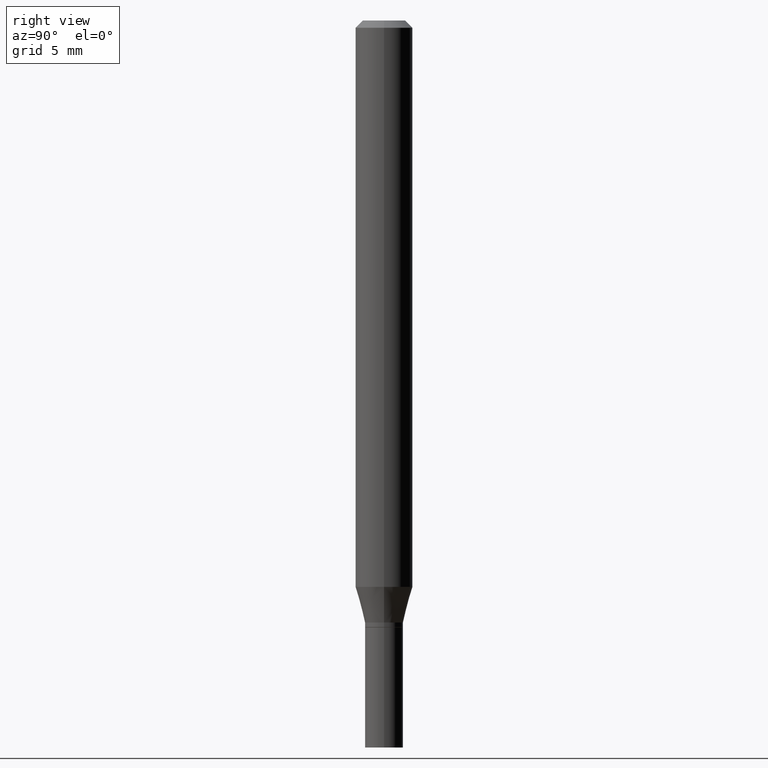
[diagram: clean part render]
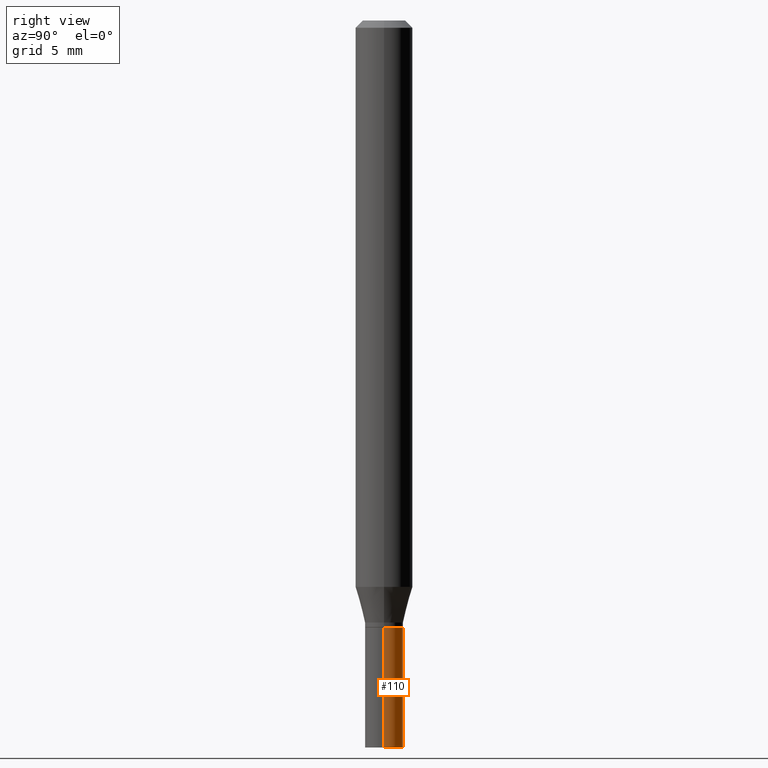
[diagram: same view with one face highlighted and labeled with its STEP entity id]
A machine part, right view. The second image highlights one B-rep face of the part: STEP entity #110.
In plain terms, the highlighted cylindrical surface (edge-blend (fillet) strip) has radius 0.9995 mm, axis along (-0, 0, 1).
Its self-contained STEP definition (entity closure, byte-faithful):
#11 = VERTEX_POINT ( 'NONE', #271 ) ;
#14 = VECTOR ( 'NONE', #391, 39.37007874015748143 ) ;
#22 = CARTESIAN_POINT ( 'NONE',  ( -0.03935000000000000303, 2.795985665215994447E-16, -1.935600958015305291E-30 ) ) ;
#28 = DIRECTION ( 'NONE',  ( 1.000000000000000000, -6.982962677686266711E-15, 4.876176775795936353E-29 ) ) ;
#42 = VERTEX_POINT ( 'NONE', #413 ) ;
#61 = AXIS2_PLACEMENT_3D ( 'NONE', #211, #287, #28 ) ;
#62 = VECTOR ( 'NONE', #278, 39.37007874015748143 ) ;
#65 = DIRECTION ( 'NONE',  ( -2.445468806185136597E-29, 3.491481338843145583E-15, 1.000000000000000000 ) ) ;
#67 = DIRECTION ( 'NONE',  ( 1.000000000000000000, -6.982962677686269077E-15, 0.000000000000000000 ) ) ;
#85 = AXIS2_PLACEMENT_3D ( 'NONE', #387, #65, #67 ) ;
#103 = CIRCLE ( 'NONE', #252, 0.03935000000000000303 ) ;
#110 = ADVANCED_FACE ( 'NONE', ( #422 ), #353, .T. ) ;
#146 = CARTESIAN_POINT ( 'NONE',  ( 0.03935000000000000303, -4.646114217598574191E-15, -1.252000000000000224 ) ) ;
#157 = VERTEX_POINT ( 'NONE', #146 ) ;
#159 = ORIENTED_EDGE ( 'NONE', *, *, #371, .T. ) ;
#165 = EDGE_CURVE ( 'NONE', #157, #439, #306, .T. ) ;
#198 = DIRECTION ( 'NONE',  ( -2.445468806185136597E-29, 3.491481338843145583E-15, 1.000000000000000000 ) ) ;
#203 = EDGE_CURVE ( 'NONE', #11, #157, #249, .T. ) ;
#211 = CARTESIAN_POINT ( 'NONE',  ( 0.000000000000000000, 0.000000000000000000, 0.000000000000000000 ) ) ;
#214 = CARTESIAN_POINT ( 'NONE',  ( 0.03935000000000000303, -2.747795813669546211E-16, 1.918775561275701074E-30 ) ) ;
#239 = CARTESIAN_POINT ( 'NONE',  ( 3.668203209277704895E-29, -5.237222008264718177E-15, -1.500000000000000222 ) ) ;
#249 = LINE ( 'NONE', #214, #14 ) ;
#252 = AXIS2_PLACEMENT_3D ( 'NONE', #239, #198, #385 ) ;
#255 = CARTESIAN_POINT ( 'NONE',  ( -0.03935000000000000303, -4.524679755726570119E-15, -1.252000000000000224 ) ) ;
#259 = EDGE_LOOP ( 'NONE', ( #159, #262, #435, #407 ) ) ;
#262 = ORIENTED_EDGE ( 'NONE', *, *, #358, .T. ) ;
#271 = CARTESIAN_POINT ( 'NONE',  ( 0.03935000000000000303, -5.512001589631673094E-15, -1.500000000000000222 ) ) ;
#278 = DIRECTION ( 'NONE',  ( -2.445468806185136877E-29, 3.491481338843145188E-15, 1.000000000000000000 ) ) ;
#287 = DIRECTION ( 'NONE',  ( -2.445468806185136597E-29, 3.491481338843145583E-15, 1.000000000000000000 ) ) ;
#306 = CIRCLE ( 'NONE', #85, 0.03935000000000000303 ) ;
#353 = CYLINDRICAL_SURFACE ( 'NONE', #61, 0.03935000000000000303 ) ;
#358 = EDGE_CURVE ( 'NONE', #42, #439, #376, .T. ) ;
#371 = EDGE_CURVE ( 'NONE', #11, #42, #103, .T. ) ;
#376 = LINE ( 'NONE', #22, #62 ) ;
#385 = DIRECTION ( 'NONE',  ( 1.000000000000000000, -6.982962677686269077E-15, 0.000000000000000000 ) ) ;
#387 = CARTESIAN_POINT ( 'NONE',  ( 3.061726945343791391E-29, -4.371334636231619274E-15, -1.252000000000000224 ) ) ;
#391 = DIRECTION ( 'NONE',  ( -2.445468806185136877E-29, 3.491481338843145188E-15, 1.000000000000000000 ) ) ;
#407 = ORIENTED_EDGE ( 'NONE', *, *, #203, .F. ) ;
#413 = CARTESIAN_POINT ( 'NONE',  ( -0.03935000000000000303, -4.524679755726570119E-15, -1.500000000000000222 ) ) ;
#422 = FACE_OUTER_BOUND ( 'NONE', #259, .T. ) ;
#435 = ORIENTED_EDGE ( 'NONE', *, *, #165, .F. ) ;
#439 = VERTEX_POINT ( 'NONE', #255 ) ;